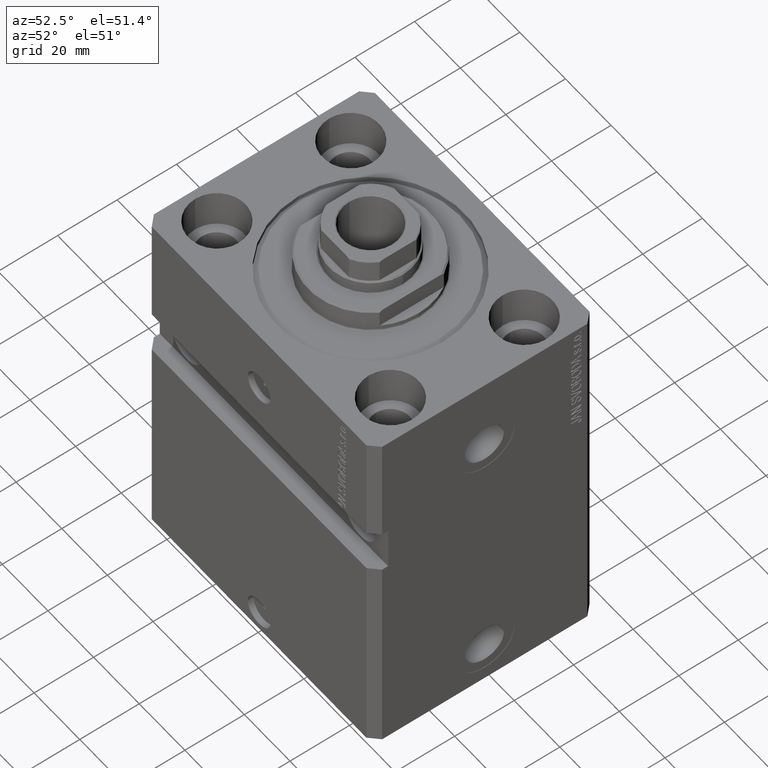
[diagram: clean part render]
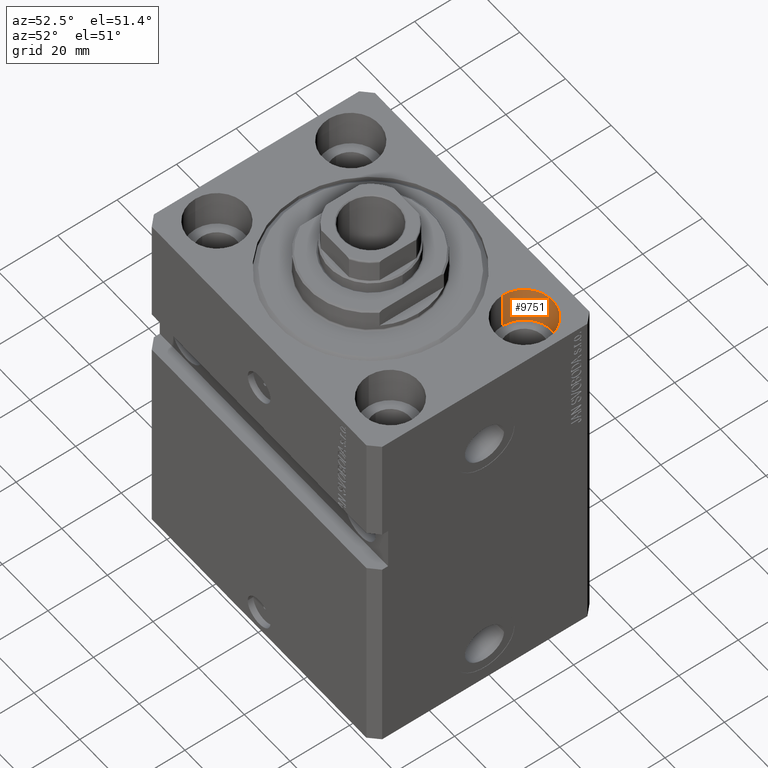
[diagram: same view with one face highlighted and labeled with its STEP entity id]
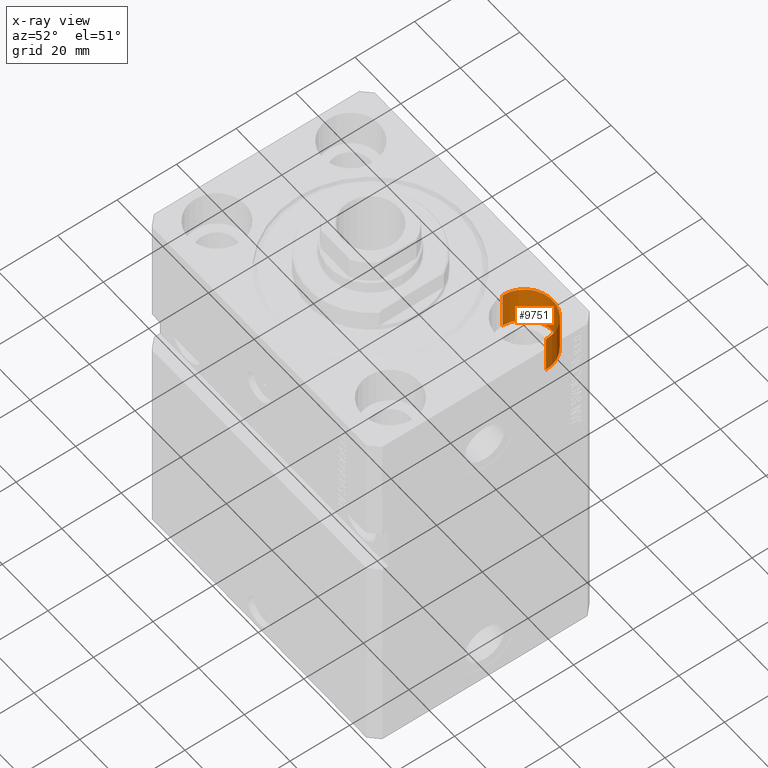
[diagram: x-ray of the same camera — body ghosted, the highlighted face saturated]
A machine part, auxiliary view. The second image highlights one B-rep face of the part: STEP entity #9751.
The next image is the same camera in x-ray: the body ghosted, the highlighted face saturated — about 0% of this face is hidden behind the body in this view.
In plain terms, the highlighted cylindrical surface (edge-blend (fillet) strip) has radius 9.5 mm, axis along (0, 0, 1).
Its self-contained STEP definition (entity closure, byte-faithful):
#564 = FACE_OUTER_BOUND ( 'NONE', #15994, .T. ) ;
#1549 = DIRECTION ( 'NONE',  ( 1.000000000000000000, 0.000000000000000000, 0.000000000000000000 ) ) ;
#2993 = VERTEX_POINT ( 'NONE', #37156 ) ;
#5873 = DIRECTION ( 'NONE',  ( 1.000000000000000000, 0.000000000000000000, 0.000000000000000000 ) ) ;
#6272 = VERTEX_POINT ( 'NONE', #39406 ) ;
#9174 = EDGE_CURVE ( 'NONE', #29963, #6272, #24104, .T. ) ;
#9751 = ADVANCED_FACE ( 'NONE', ( #564 ), #20056, .F. ) ;
#10535 = VECTOR ( 'NONE', #47929, 1000.000000000000000 ) ;
#11032 = AXIS2_PLACEMENT_3D ( 'NONE', #38826, #23727, #1549 ) ;
#12019 = ORIENTED_EDGE ( 'NONE', *, *, #39997, .F. ) ;
#15405 = ORIENTED_EDGE ( 'NONE', *, *, #42987, .F. ) ;
#15994 = EDGE_LOOP ( 'NONE', ( #15405, #12019, #31988, #42204 ) ) ;
#19995 = CARTESIAN_POINT ( 'NONE',  ( 38.00000000000000711, 22.50000000000001421, 0.000000000000000000 ) ) ;
#20056 = CYLINDRICAL_SURFACE ( 'NONE', #35007, 9.500000000000001776 ) ;
#21150 = VERTEX_POINT ( 'NONE', #43036 ) ;
#22748 = DIRECTION ( 'NONE',  ( -0.000000000000000000, -0.000000000000000000, 1.000000000000000000 ) ) ;
#23001 = CARTESIAN_POINT ( 'NONE',  ( 47.50000000000000711, 22.50000000000001421, 0.000000000000000000 ) ) ;
#23727 = DIRECTION ( 'NONE',  ( 0.000000000000000000, 0.000000000000000000, 1.000000000000000000 ) ) ;
#23868 = LINE ( 'NONE', #39706, #36043 ) ;
#24104 = CIRCLE ( 'NONE', #32669, 9.500000000000001776 ) ;
#26603 = CIRCLE ( 'NONE', #11032, 9.500000000000001776 ) ;
#27768 = DIRECTION ( 'NONE',  ( -0.000000000000000000, -0.000000000000000000, 1.000000000000000000 ) ) ;
#29963 = VERTEX_POINT ( 'NONE', #23001 ) ;
#31988 = ORIENTED_EDGE ( 'NONE', *, *, #45157, .T. ) ;
#32669 = AXIS2_PLACEMENT_3D ( 'NONE', #19995, #35097, #5873 ) ;
#34445 = CARTESIAN_POINT ( 'NONE',  ( 38.00000000000000711, 22.50000000000001421, -13.00000000000000000 ) ) ;
#34917 = DIRECTION ( 'NONE',  ( 1.000000000000000000, 0.000000000000000000, 0.000000000000000000 ) ) ;
#35007 = AXIS2_PLACEMENT_3D ( 'NONE', #34445, #22748, #34917 ) ;
#35097 = DIRECTION ( 'NONE',  ( 0.000000000000000000, 0.000000000000000000, 1.000000000000000000 ) ) ;
#36043 = VECTOR ( 'NONE', #27768, 1000.000000000000000 ) ;
#37156 = CARTESIAN_POINT ( 'NONE',  ( 28.50000000000000355, 22.50000000000001421, -13.00000000000000000 ) ) ;
#38826 = CARTESIAN_POINT ( 'NONE',  ( 38.00000000000000711, 22.50000000000001421, -13.00000000000000000 ) ) ;
#39406 = CARTESIAN_POINT ( 'NONE',  ( 28.50000000000000355, 22.50000000000001421, 0.000000000000000000 ) ) ;
#39706 = CARTESIAN_POINT ( 'NONE',  ( 28.50000000000000355, 22.50000000000001421, -13.00000000000000000 ) ) ;
#39997 = EDGE_CURVE ( 'NONE', #21150, #2993, #26603, .T. ) ;
#42204 = ORIENTED_EDGE ( 'NONE', *, *, #9174, .T. ) ;
#42987 = EDGE_CURVE ( 'NONE', #2993, #6272, #23868, .T. ) ;
#43036 = CARTESIAN_POINT ( 'NONE',  ( 47.50000000000000711, 22.50000000000001421, -13.00000000000000000 ) ) ;
#43810 = CARTESIAN_POINT ( 'NONE',  ( 47.50000000000000711, 22.50000000000001421, -13.00000000000000000 ) ) ;
#45157 = EDGE_CURVE ( 'NONE', #21150, #29963, #48158, .T. ) ;
#47929 = DIRECTION ( 'NONE',  ( -0.000000000000000000, -0.000000000000000000, 1.000000000000000000 ) ) ;
#48158 = LINE ( 'NONE', #43810, #10535 ) ;